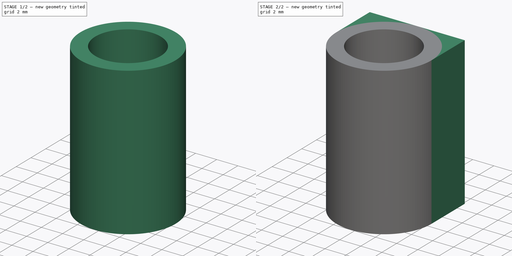
[diagram: build sequence overview — one tinted view per stage of 2, left to right]
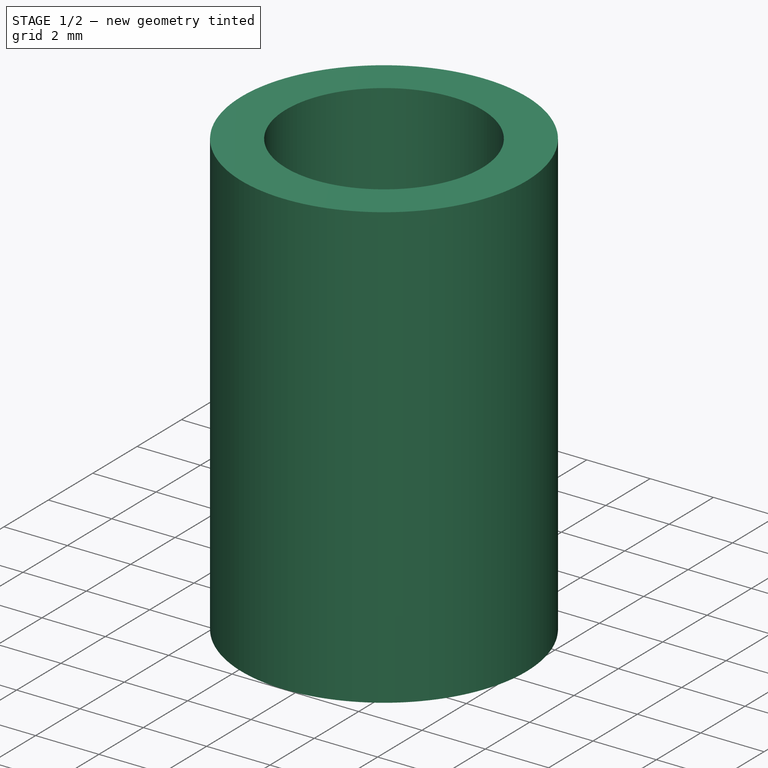
[diagram: stage 1 of 2 — iso view after this stage's code; geometry added in this stage tinted green]
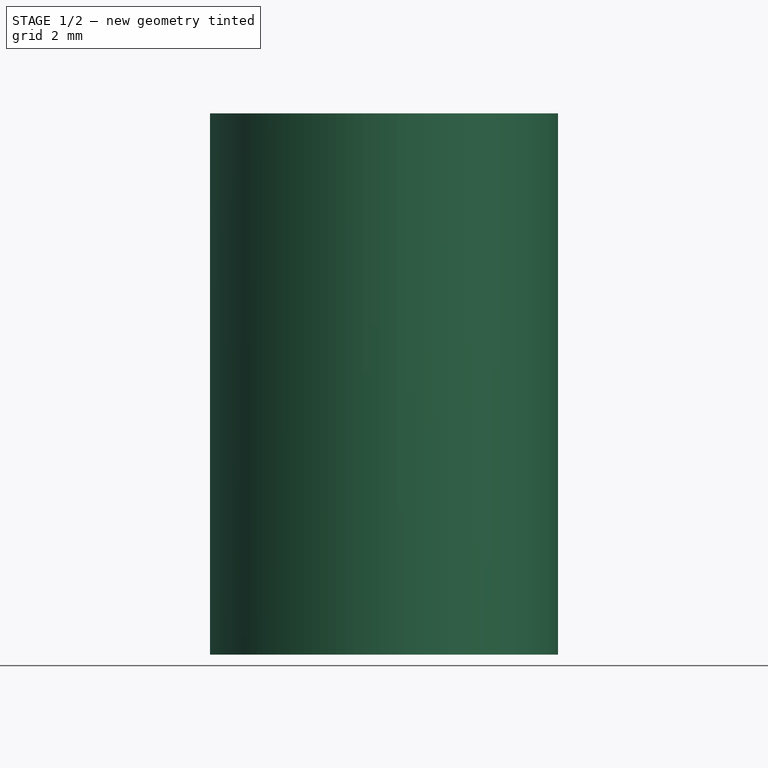
[diagram: stage 1 of 2 — front view after this stage's code; geometry added in this stage tinted green]
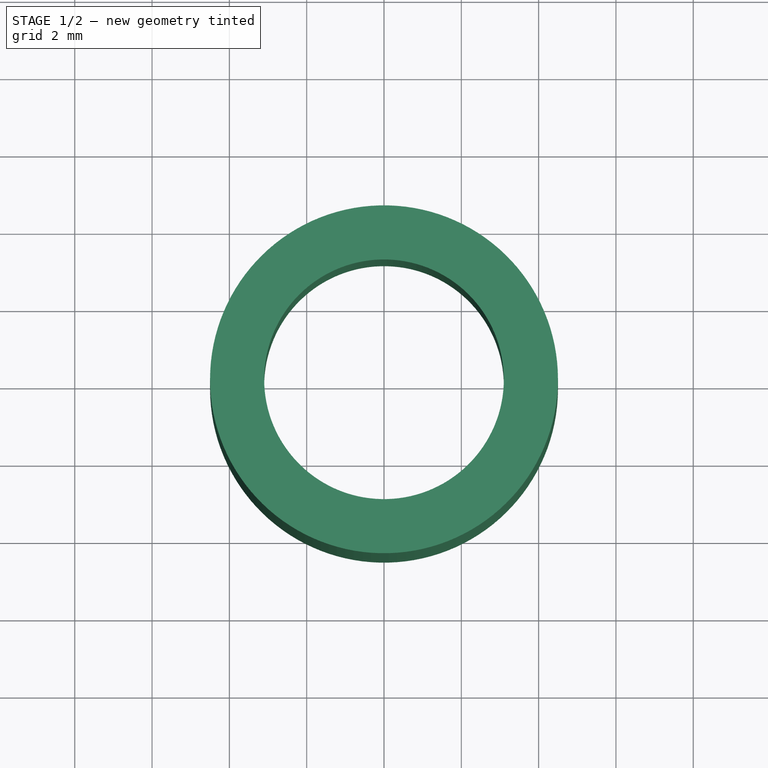
[diagram: stage 1 of 2 — top view after this stage's code; geometry added in this stage tinted green]
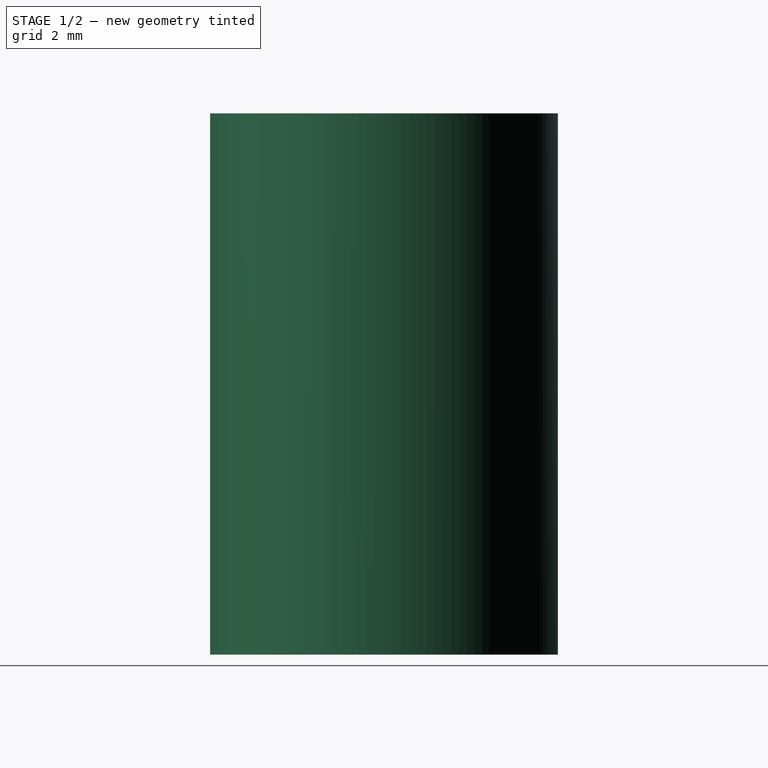
[diagram: stage 1 of 2 — right view after this stage's code; geometry added in this stage tinted green]
FCSTD DOCUMENT  (FreeCAD 0.16R6712 (Git))
Label: VibratorCover
License: All rights reserved
LicenseURL: http://en.wikipedia.org/wiki/All_rights_reserved
objects: Sketcher::SketchObject×2, PartDesign::Revolution×1, PartDesign::Pad×1
note: 6 computed .brp shape members not serialized (recipe doc carries the construction recipe); baked Part::Feature solids carry a one-line shape summary decoded from their .brp

FEATURE [Sketcher::SketchObject] Sketch
  Placement = pos=(0,0,0) rot=(-1,0,0;4.71239rad)
  sketch-geometry (6):
    g0: LineSegment StartX=4.5 StartY=0 StartZ=0 EndX=4.5 EndY=14 EndZ=0
    g1: LineSegment StartX=4.5 StartY=0 StartZ=0 EndX=3.5 EndY=0 EndZ=0
    g2: LineSegment StartX=3.5 StartY=0 StartZ=0 EndX=3.5 EndY=4 EndZ=0
    g3: LineSegment StartX=3.5 StartY=4 StartZ=0 EndX=3.1 EndY=4 EndZ=0
    g4: LineSegment StartX=3.1 StartY=4 StartZ=0 EndX=3.1 EndY=14 EndZ=0
    g5: LineSegment StartX=3.1 StartY=14 StartZ=0 EndX=4.5 EndY=14 EndZ=0
  constraints (18):
    c: PointOnObject(g0,g-1)
    c: Vertical(g0)
    c: Coincident(g0,g1)
    c: PointOnObject(g1,g-1)
    c: Coincident(g1,g2)
    c: Vertical(g2)
    c: Coincident(g2,g3)
    c: Horizontal(g3)
    c: Coincident(g3,g4)
    c: Vertical(g4)
    c: Coincident(g4,g5)
    c: Coincident(g5,g0)
    c: Horizontal(g5)
    c: DistanceX(g-1,g3) = 3.1
    c: DistanceX(g-1,g1) = 3.5
    c: Distance(g2) = 4
    c: Distance(g0) = 14
    c: Distance(g1) = 1
FEATURE [PartDesign::Revolution] Revolution
  Angle = 360
  Axis = (0,0,1)
  Base = (0,0,0)
  Placement = pos=(0,0,0) rot=(-1,0,0;4.71239rad)
  ReferenceAxis = -> Sketch [V_Axis]
  Reversed = true
  Sketch = -> Sketch
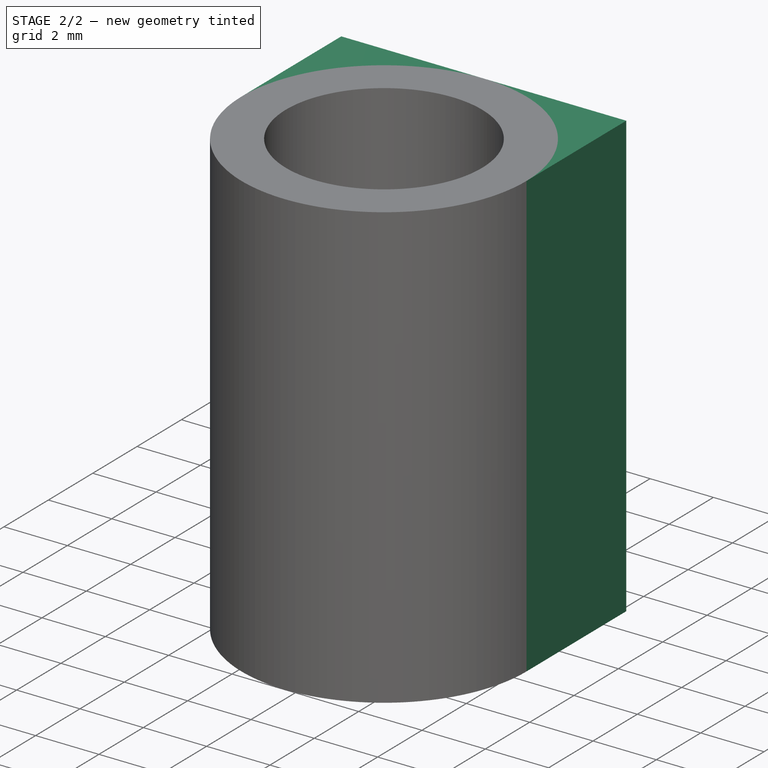
[diagram: stage 2 of 2 — iso view after this stage's code; geometry added in this stage tinted green]
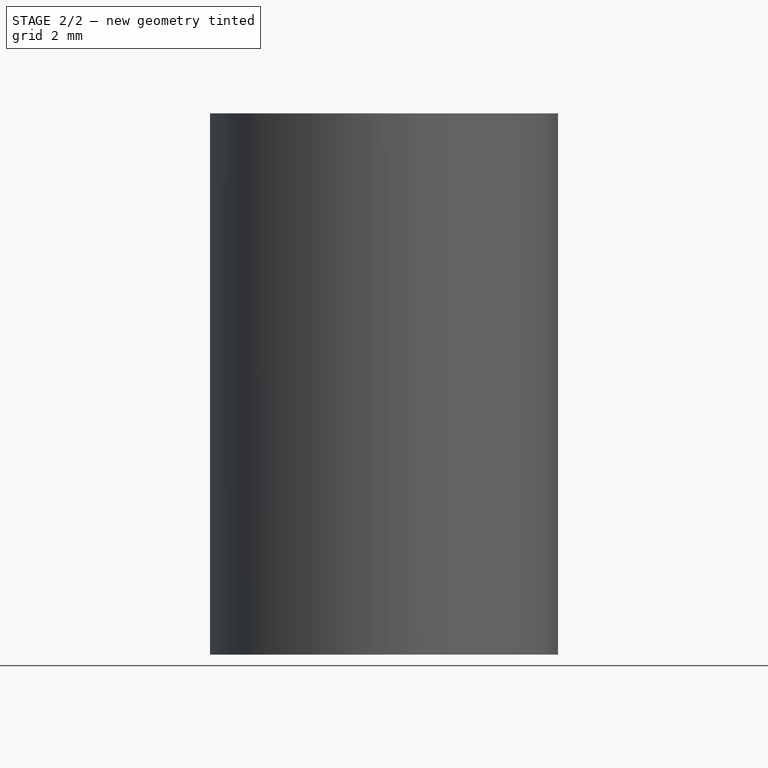
[diagram: stage 2 of 2 — front view after this stage's code; geometry added in this stage tinted green]
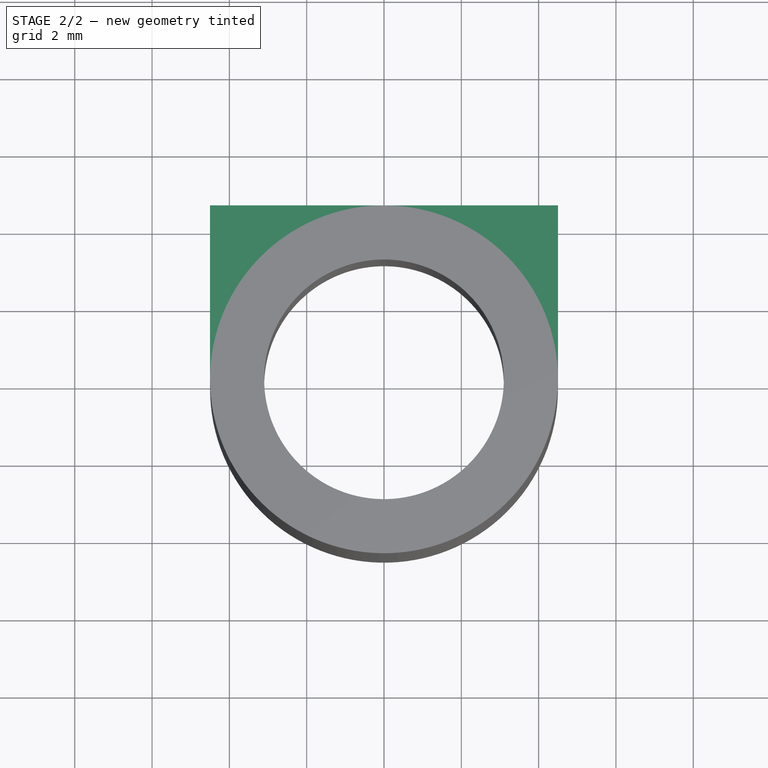
[diagram: stage 2 of 2 — top view after this stage's code; geometry added in this stage tinted green]
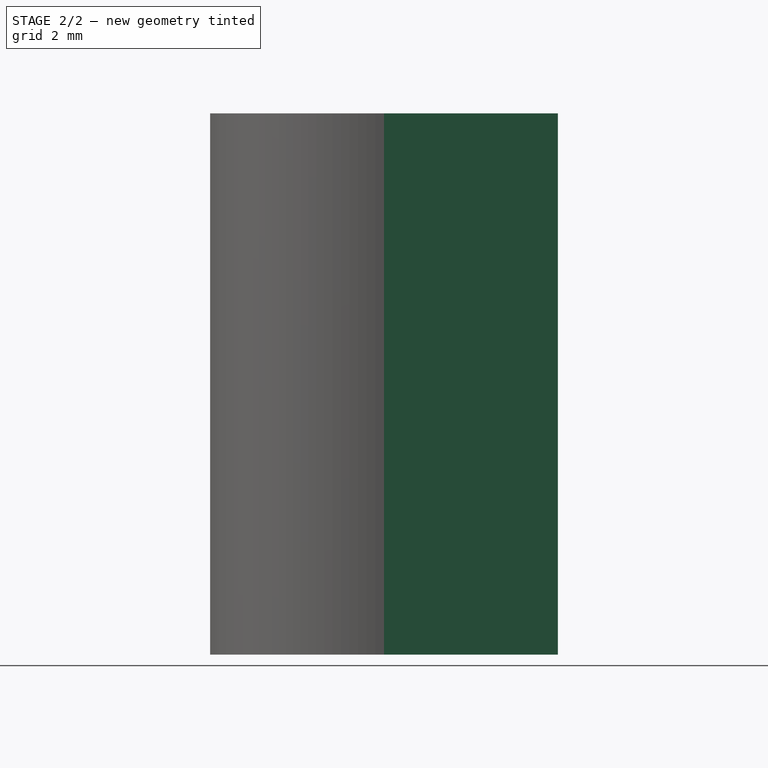
[diagram: stage 2 of 2 — right view after this stage's code; geometry added in this stage tinted green]
FEATURE [Sketcher::SketchObject] Sketch001
  ExternalGeometry = -> [Revolution]
  Placement = pos=(0,0,14) rot=(0,0,1;3.14159rad)
  Support = -> Revolution [Face2]
  sketch-geometry (6):
    g0: LineSegment StartX=-4.5 StartY=-4.5 StartZ=0 EndX=4.5 EndY=-4.5 EndZ=0
    g1: ArcOfCircle CenterX=0 CenterY=0 CenterZ=0 NormalX=0 NormalY=0 NormalZ=1 Radius=4.4 StartAngle=3.14159 EndAngle=6.28319
    g2: LineSegment StartX=-4.4 StartY=0 StartZ=0 EndX=-4.5 EndY=0 EndZ=0
    g3: LineSegment StartX=4.4 StartY=0 StartZ=0 EndX=4.5 EndY=0 EndZ=0
    g4: LineSegment StartX=-4.5 StartY=0 StartZ=0 EndX=-4.5 EndY=-4.5 EndZ=0
    g5: LineSegment StartX=4.5 StartY=-4.5 StartZ=0 EndX=4.5 EndY=0 EndZ=0
  constraints (18):
    c: Horizontal(g0)
    c: Tangent(g0,g-3)
    c: Symmetric(g0,g0,g-2)
    c: Coincident(g1,g-1)
    c: Coincident(g2,g1)
    c: Horizontal(g2)
    c: Coincident(g3,g1)
    c: Horizontal(g3)
    c: Coincident(g4,g2)
    c: Coincident(g4,g0)
    c: Vertical(g4)
    c: Coincident(g5,g0)
    c: Coincident(g5,g3)
    c: Vertical(g5)
    c: PointOnObject(g3,g-3)
    c: PointOnObject(g1,g-1)
    c: PointOnObject(g1,g-1)
    c: Distance(g2) = 0.1
FEATURE [PartDesign::Pad] Pad
  Length = 14
  Length2 = 100
  Placement = pos=(0,0,0) rot=(-1,0,0;4.71239rad)
  Reversed = true
  Sketch = -> Sketch001
  Type = 0
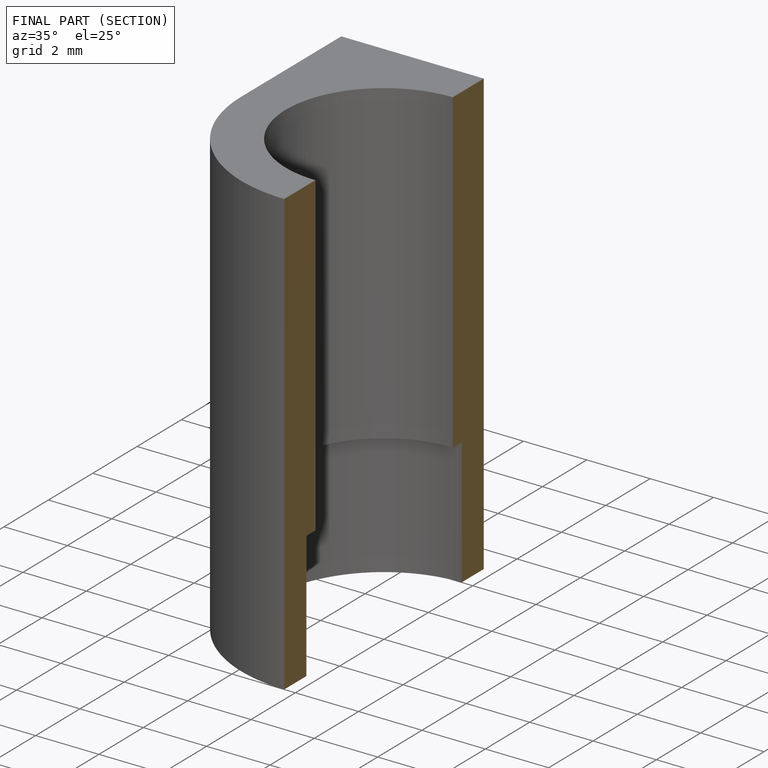
[diagram: finished part — half-section view (interior)]
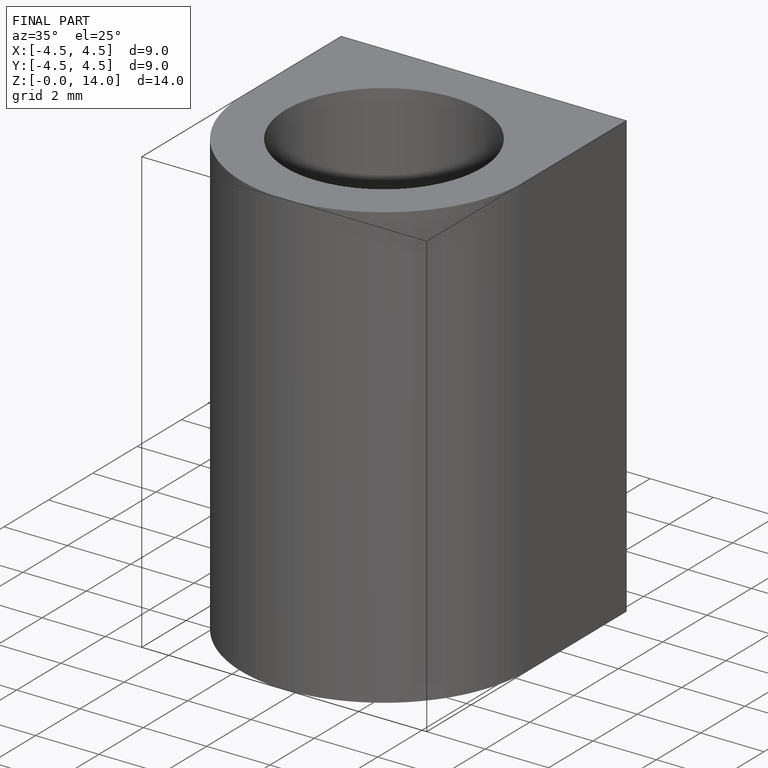
[diagram: finished part — iso view with bounding-box wireframe]
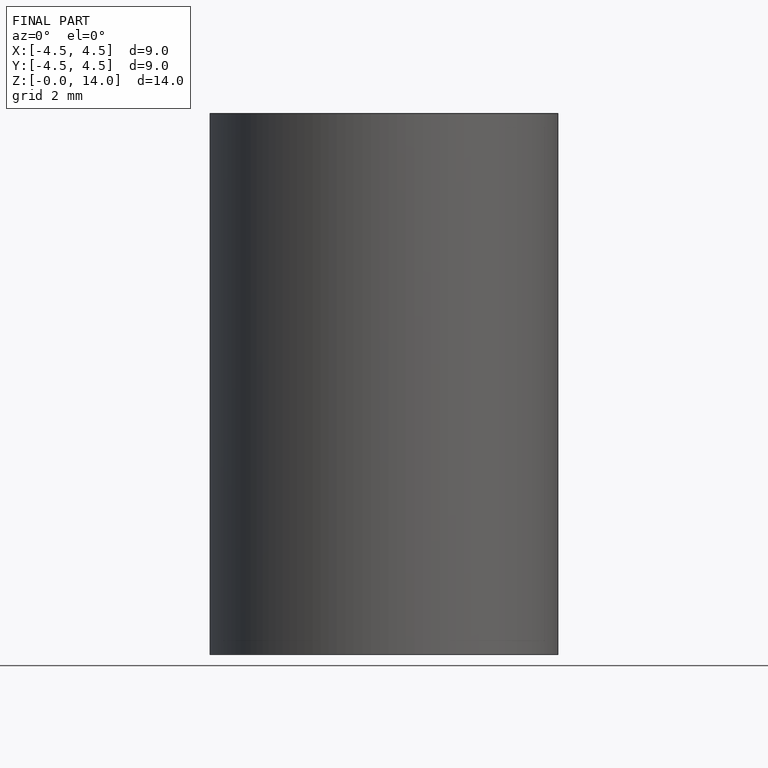
[diagram: finished part — front view with bounding-box wireframe]
